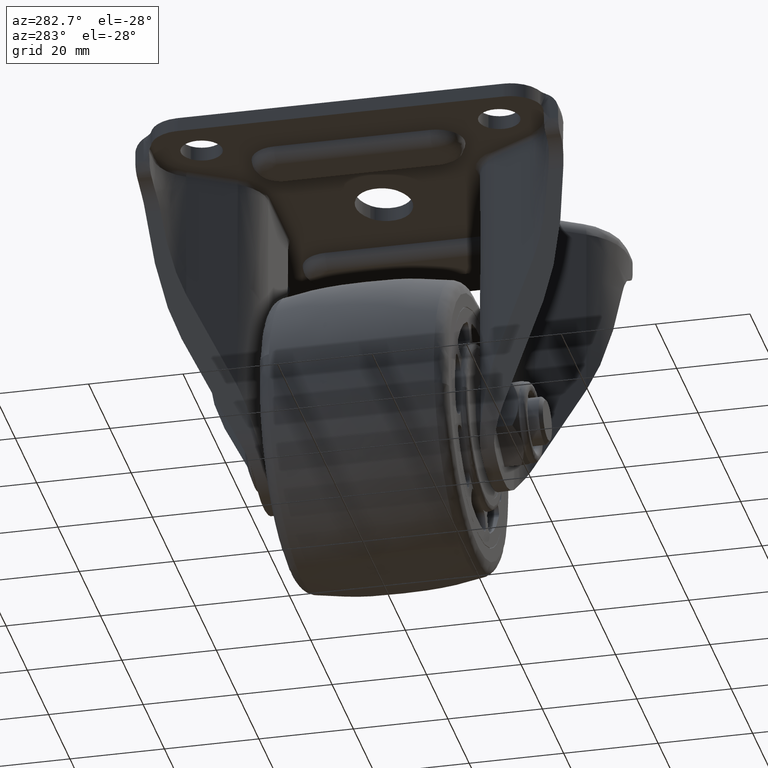
[diagram: clean part render]
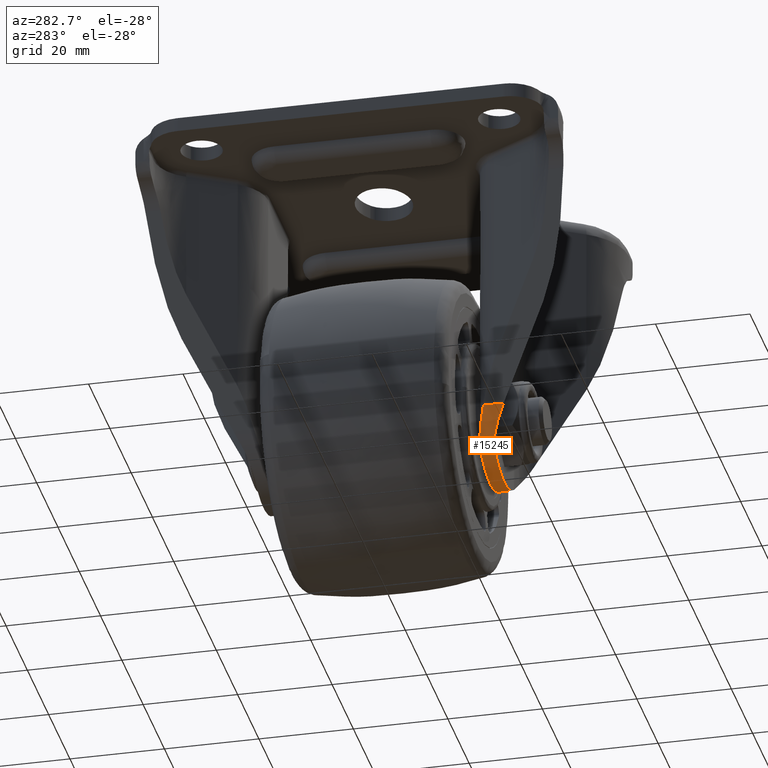
[diagram: same view with one face highlighted and labeled with its STEP entity id]
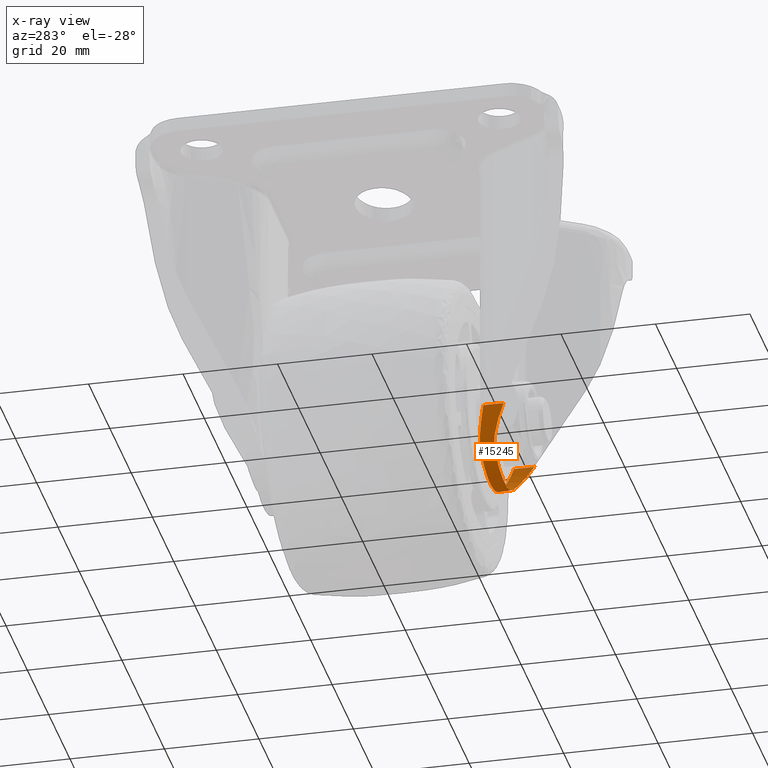
[diagram: x-ray of the same camera — body ghosted, the highlighted face saturated]
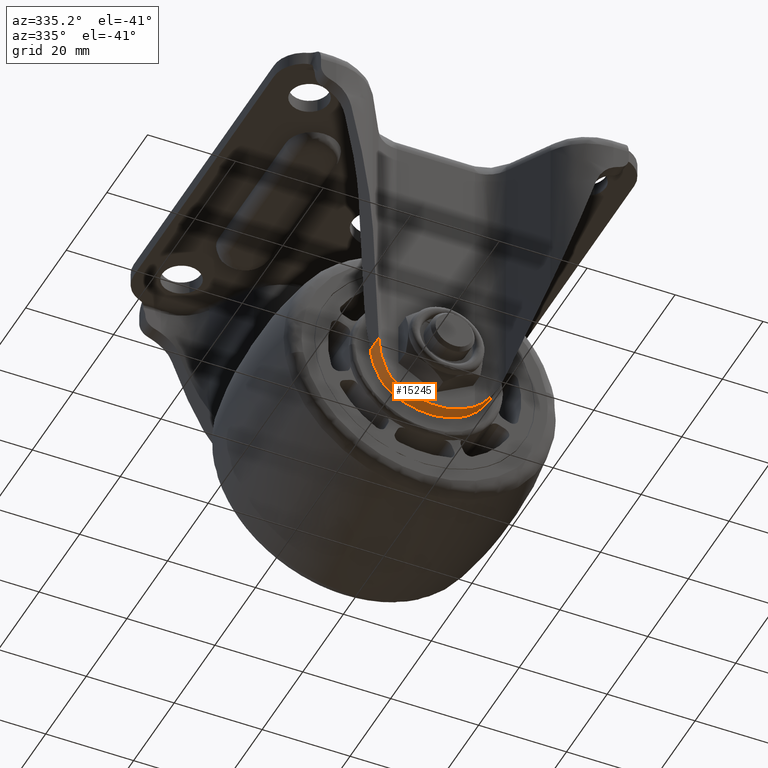
[diagram: same view with one face highlighted and labeled with its STEP entity id]
A machine part, auxiliary view. The second image highlights one B-rep face of the part: STEP entity #15245.
The next image is the same camera in x-ray: the body ghosted, the highlighted face saturated — about 0% of this face is hidden behind the body in this view.
A second angle (auxiliary view) of the same face is appended — the face is thin or edge-on in the first view.
In plain terms, the highlighted face is a freeform B-spline surface patch.
Its self-contained STEP definition (entity closure, byte-faithful):
#10280=CARTESIAN_POINT('',(8.881149699124109,-22.499996999999851,-10.588224849900380));
#10281=VERTEX_POINT('',#10280);
#10301=CARTESIAN_POINT('',(14.400001999999921,-24.267450894019149,-2.699997000000000));
#10302=VERTEX_POINT('',#10301);
#10316=CARTESIAN_POINT('',(8.881149699124109,-22.499996999999851,-10.588224849900380));
#10317=CARTESIAN_POINT('',(9.221093584384677,-22.499997029707231,-10.338470063290099));
#10318=CARTESIAN_POINT('',(9.546306329351531,-22.518134060355049,-10.077521244424821));
#10319=CARTESIAN_POINT('',(10.169592594169970,-22.582562516810569,-9.534054174112693));
#10320=CARTESIAN_POINT('',(10.467656278309891,-22.628892433356881,-9.251533196845202));
#10321=CARTESIAN_POINT('',(11.037996559307130,-22.743506571442850,-8.665132984200181));
#10322=CARTESIAN_POINT('',(11.310268712563071,-22.811814969906909,-8.361253739002253));
#10323=CARTESIAN_POINT('',(11.699801962969159,-22.926765811859799,-7.889157005373990));
#10324=CARTESIAN_POINT('',(11.826495192865110,-22.967169087614931,-7.729074083754991));
#10325=CARTESIAN_POINT('',(12.011820335443030,-23.030428496548488,-7.484800047012143));
#10326=CARTESIAN_POINT('',(12.072809279654320,-23.051957472507340,-7.402683461634322));
#10327=CARTESIAN_POINT('',(12.193213117689981,-23.095821676951370,-7.237050492551641));
#10328=CARTESIAN_POINT('',(12.252696990375821,-23.118184164848401,-7.153433538915520));
#10329=CARTESIAN_POINT('',(12.545127373603730,-23.231405392042689,-6.733315573359042));
#10330=CARTESIAN_POINT('',(12.763216703084780,-23.326462590251939,-6.390730774593934));
#10331=CARTESIAN_POINT('',(13.169569283902090,-23.520014618176070,-5.692063720815890));
#10332=CARTESIAN_POINT('',(13.357827367438510,-23.618524975205140,-5.335982980301222));
#10333=CARTESIAN_POINT('',(13.705394166498950,-23.813643592720879,-4.609368944987787));
#10334=CARTESIAN_POINT('',(13.864702794703900,-23.910263119411741,-4.238838515323840));
#10335=CARTESIAN_POINT('',(14.154337546781850,-24.096005204243060,-3.481865362439446));
#10336=CARTESIAN_POINT('',(14.284668349714600,-24.185135290331619,-3.095426838427700));
#10337=CARTESIAN_POINT('',(14.400001999999921,-24.267450894019149,-2.699997000000000));
#10338=B_SPLINE_CURVE_WITH_KNOTS('',3,(#10316,#10317,#10318,#10319,#10320,#10321,#10322,#10323,#10324,#10325,#10326,#10327,#10328,#10329,#10330,#10331,#10332,#10333,#10334,#10335,#10336,#10337),.UNSPECIFIED.,.F.,.U.,(4,2,2,2,2,2,2,2,2,2,4),(0.0,0.125000000000000,0.249999999999999,0.374999999999999,0.437499999999999,0.468749999999999,0.499999999999999,0.624999999999999,0.750000000000000,0.875000000000000,1.0),.UNSPECIFIED.);
#10339=EDGE_CURVE('',#10281,#10302,#10338,.T.);
#10939=CARTESIAN_POINT('',(-8.881149699124189,-25.499996999999851,-10.588224849900261));
#10940=VERTEX_POINT('',#10939);
#10960=CARTESIAN_POINT('',(-14.400001811212540,-28.566009323129450,-2.699993790123425));
#10961=VERTEX_POINT('',#10960);
#10967=CARTESIAN_POINT('',(-14.400001811212540,-28.566009323129450,-2.699993790123425));
#10968=CARTESIAN_POINT('',(-14.289225340388070,-28.387977536906948,-3.079799442280185));
#10969=CARTESIAN_POINT('',(-14.164649607028910,-28.207116723146640,-3.451286829396446));
#10970=CARTESIAN_POINT('',(-13.887792483201650,-27.848510506704191,-4.181703943394687));
#10971=CARTESIAN_POINT('',(-13.735507405328381,-27.670668215394489,-4.540586160238282));
#10972=CARTESIAN_POINT('',(-13.402193834325329,-27.323669766736572,-5.247891912906223));
#10973=CARTESIAN_POINT('',(-13.221170757137999,-27.154464461876319,-5.596295037456437));
#10974=CARTESIAN_POINT('',(-12.828404980817041,-26.829489858223031,-6.283879822824757));
#10975=CARTESIAN_POINT('',(-12.616676556406469,-26.673683839799029,-6.623051411572615));
#10976=CARTESIAN_POINT('',(-12.273640620149040,-26.453876865503538,-7.125477889278635));
#10977=CARTESIAN_POINT('',(-12.155043902749430,-26.382930618755559,-7.291895437762599));
#10978=CARTESIAN_POINT('',(-11.970346209406619,-26.280572254641459,-7.539991208155220));
#10979=CARTESIAN_POINT('',(-11.907551956370730,-26.247083956310419,-7.622553200806691));
#10980=CARTESIAN_POINT('',(-11.780185029754641,-26.181860420073662,-7.786442330621632));
#10981=CARTESIAN_POINT('',(-11.715609729963781,-26.150118884248350,-7.867779545992212));
#10982=CARTESIAN_POINT('',(-11.388228393882830,-25.995968470129661,-8.271444802222121));
#10983=CARTESIAN_POINT('',(-11.111951009889671,-25.887154945995711,-8.584729786911373));
#10984=CARTESIAN_POINT('',(-10.528832667817790,-25.704883553842450,-9.192095808320214));
#10985=CARTESIAN_POINT('',(-10.222010667838770,-25.631363339545810,-9.486176994483555));
#10986=CARTESIAN_POINT('',(-9.817403045679889,-25.567257121187019,-9.841525321981424));
#10987=CARTESIAN_POINT('',(-9.735423228720954,-25.555835584444221,-9.911981105005692));
#10988=CARTESIAN_POINT('',(-9.569277750526295,-25.535982813909360,-10.051653626931900));
#10989=CARTESIAN_POINT('',(-9.485039134076137,-25.527549513623679,-10.120925505158461));
#10990=CARTESIAN_POINT('',(-9.230257314108176,-25.507142502374371,-10.325813198294050));
#10991=CARTESIAN_POINT('',(-9.057285202300992,-25.499996999999851,-10.458819102533100));
#10992=CARTESIAN_POINT('',(-8.881149699124169,-25.499996999999851,-10.588224849900280));
#10993=B_SPLINE_CURVE_WITH_KNOTS('',3,(#10967,#10968,#10969,#10970,#10971,#10972,#10973,#10974,#10975,#10976,#10977,#10978,#10979,#10980,#10981,#10982,#10983,#10984,#10985,#10986,#10987,#10988,#10989,#10990,#10991,#10992),.UNSPECIFIED.,.F.,.U.,(4,2,2,2,2,2,2,2,2,2,2,2,4),(0.0,0.124999999999999,0.249999999999999,0.374999999999998,0.499999999999998,0.562499999999997,0.593749999999997,0.624999999999997,0.749999999999998,0.874999999999999,0.906249999999999,0.937499999999999,1.0),.UNSPECIFIED.);
#10994=EDGE_CURVE('',#10961,#10940,#10993,.T.);
#11035=CARTESIAN_POINT('',(8.881149699124141,-25.499996999999802,-10.588224849900300));
#11036=VERTEX_POINT('',#11035);
#11042=CARTESIAN_POINT('',(14.400001999999921,-28.566009626534751,-2.699997000000000));
#11043=VERTEX_POINT('',#11042);
#11044=CARTESIAN_POINT('',(8.881149699124141,-25.499996999999802,-10.588224849900300));
#11045=CARTESIAN_POINT('',(9.232813721907949,-25.499997064945411,-10.329859344001379));
#11046=CARTESIAN_POINT('',(9.568323028878247,-25.528266797123120,-10.059814854982751));
#11047=CARTESIAN_POINT('',(10.210080581248841,-25.629012747503349,-9.497107889268682));
#11048=CARTESIAN_POINT('',(10.516308828842741,-25.701584257187079,-9.204443567248234));
#11049=CARTESIAN_POINT('',(10.954933290222600,-25.837785114239139,-8.748605207311051));
#11050=CARTESIAN_POINT('',(11.097679653278300,-25.887768010493652,-8.593847819988419));
#11051=CARTESIAN_POINT('',(11.306693860084099,-25.969050231203429,-8.357471561719978));
#11052=CARTESIAN_POINT('',(11.375450355400179,-25.997176243885178,-8.278038920635868));
#11053=CARTESIAN_POINT('',(11.510494275093910,-26.055088275432411,-8.118702519510368));
#11054=CARTESIAN_POINT('',(11.576882147352860,-26.084912647587171,-8.038686079093797));
#11055=CARTESIAN_POINT('',(11.903337232838879,-26.238087608575348,-7.636855119187408));
#11056=CARTESIAN_POINT('',(12.147019196327250,-26.373525150930622,-7.309805952017278));
#11057=CARTESIAN_POINT('',(12.602983420776321,-26.664170652659841,-6.644173871285056));
#11058=CARTESIAN_POINT('',(12.815247670333120,-26.819416701884471,-6.305596188506537));
#11059=CARTESIAN_POINT('',(13.210524753287920,-27.144891314709739,-5.616174770443038));
#11060=CARTESIAN_POINT('',(13.393529276578890,-27.315155242579380,-5.265341327567306));
#11061=CARTESIAN_POINT('',(13.646976162152210,-27.578263921289761,-4.728898634377958));
#11062=CARTESIAN_POINT('',(13.727920269822221,-27.667243384901909,-4.548393949948057));
#11063=CARTESIAN_POINT('',(13.882086498437531,-27.846134873559251,-4.185643339401516));
#11064=CARTESIAN_POINT('',(13.955424877485090,-27.936165662119532,-4.003159533976083));
#11065=CARTESIAN_POINT('',(14.164500729382670,-28.206820810476490,-3.451911929476181));
#11066=CARTESIAN_POINT('',(14.289332923343469,-28.388150534227659,-3.079434001201737));
#11067=CARTESIAN_POINT('',(14.400001999999921,-28.566009626534751,-2.699997000000000));
#11068=B_SPLINE_CURVE_WITH_KNOTS('',3,(#11044,#11045,#11046,#11047,#11048,#11049,#11050,#11051,#11052,#11053,#11054,#11055,#11056,#11057,#11058,#11059,#11060,#11061,#11062,#11063,#11064,#11065,#11066,#11067),.UNSPECIFIED.,.F.,.U.,(4,2,2,2,2,2,2,2,2,2,2,4),(0.0,0.124999999999999,0.249999999999999,0.312499999999998,0.343749999999998,0.374999999999998,0.499999999999999,0.624999999999999,0.750000000000000,0.812500000000000,0.875000000000000,1.0),.UNSPECIFIED.);
#11069=EDGE_CURVE('',#11036,#11043,#11068,.T.);
#11440=CARTESIAN_POINT('',(-8.881149699124199,-22.499996999999851,-10.588224849900261));
#11441=VERTEX_POINT('',#11440);
#11455=CARTESIAN_POINT('',(-8.881149699124199,-22.499996999999851,-10.588224849900261));
#11456=CARTESIAN_POINT('',(-8.003607832519460,-22.499996999999841,-11.233204240560219));
#11457=CARTESIAN_POINT('',(-6.365754512921816,-22.499996999999830,-12.180886370924020));
#11458=CARTESIAN_POINT('',(-4.162801986321525,-22.499996999999919,-12.951741968923900));
#11459=CARTESIAN_POINT('',(-2.273873686656827,-22.499996999999670,-13.359980792118151));
#11460=CARTESIAN_POINT('',(-0.348126100300443,-22.499997000000420,-13.551291613181130));
#11461=CARTESIAN_POINT('',(2.131759955150131,-22.499996999999361,-13.428532215796210));
#11462=CARTESIAN_POINT('',(4.312489957043629,-22.499997000000160,-12.923171846836739));
#11463=CARTESIAN_POINT('',(6.667458579177092,-22.499996999999649,-12.006265035334740));
#11464=CARTESIAN_POINT('',(8.003607268865578,-22.499996999999968,-11.233216174068360));
#11465=CARTESIAN_POINT('',(8.881149699124109,-22.499996999999851,-10.588224849900380));
#11466=B_SPLINE_CURVE_WITH_KNOTS('',3,(#11455,#11456,#11457,#11458,#11459,#11460,#11461,#11462,#11463,#11464,#11465),.UNSPECIFIED.,.F.,.U.,(4,1,1,1,1,1,1,1,4),(0.000000054522978,3.267180752254211,5.643324096917235,6.979903055922604,9.059051894187329,11.435122852230750,14.405315932280789,15.741894478587181,19.009075791508600),.UNSPECIFIED.);
#11467=EDGE_CURVE('',#11441,#10281,#11466,.T.);
#11528=CARTESIAN_POINT('',(8.881149699124141,-25.499996999999802,-10.588224849900300));
#11529=CARTESIAN_POINT('',(8.003589229943692,-25.499996999999791,-11.233174414509371));
#11530=CARTESIAN_POINT('',(6.408873979468400,-25.499996999999880,-12.155970504466801));
#11531=CARTESIAN_POINT('',(4.210569067027181,-25.499996999999759,-12.937376983698030));
#11532=CARTESIAN_POINT('',(2.226475048980924,-25.499996999999830,-13.376509175245721));
#11533=CARTESIAN_POINT('',(0.248049147845943,-25.499997000000000,-13.553305289878560));
#11534=CARTESIAN_POINT('',(-1.683775153114072,-25.499996999999830,-13.438351803718099));
#11535=CARTESIAN_POINT('',(-3.538532250110676,-25.499996999999858,-13.113722225988170));
#11536=CARTESIAN_POINT('',(-5.963033244885367,-25.499996999999869,-12.385013399325080));
#11537=CARTESIAN_POINT('',(-7.804235430247177,-25.499996999999869,-11.379933211495960));
#11538=CARTESIAN_POINT('',(-8.881149699124189,-25.499996999999851,-10.588224849900261));
#11539=B_SPLINE_CURVE_WITH_KNOTS('',3,(#11528,#11529,#11530,#11531,#11532,#11533,#11534,#11535,#11536,#11537,#11538),.UNSPECIFIED.,.F.,.U.,(4,1,1,1,1,1,1,1,4),(0.000000054525124,3.267180752255968,5.494811719497378,6.979903055924011,9.356053752819783,11.435122852231521,12.771719235524950,14.999349811330831,19.009075791508650),.UNSPECIFIED.);
#11540=EDGE_CURVE('',#11036,#10940,#11539,.T.);
#15164=CARTESIAN_POINT('',(-14.400001811212540,-24.267450759278301,-2.699993790123425));
#15165=VERTEX_POINT('',#15164);
#15179=CARTESIAN_POINT('',(-14.400001811212540,-24.267450759278301,-2.699993790123425));
#15180=CARTESIAN_POINT('',(-14.400001811212540,-28.566009323129450,-2.699993790123425));
#15181=QUASI_UNIFORM_CURVE('',1,(#15179,#15180),.UNSPECIFIED.,.F.,.U.);
#15182=EDGE_CURVE('',#15165,#10961,#15181,.T.);
#15187=CARTESIAN_POINT('',(14.541969985432660,-22.348346684336480,-2.178465569062108));
#15188=CARTESIAN_POINT('',(14.541969985432660,-28.721451200089710,-2.178465569062108));
#15189=CARTESIAN_POINT('',(11.642101553974213,-22.348346684336473,-13.642430339221528));
#15190=CARTESIAN_POINT('',(11.642101553974213,-28.721451200089714,-13.642430339221528));
#15191=CARTESIAN_POINT('',(-0.182073798143538,-22.348346684336480,-13.498894930361679));
#15192=CARTESIAN_POINT('',(-0.182073798143538,-28.721451200089710,-13.498894930361679));
#15193=CARTESIAN_POINT('',(-12.006249150261290,-22.348346684336473,-13.355359521501843));
#15194=CARTESIAN_POINT('',(-12.006249150261290,-28.721451200089714,-13.355359521501843));
#15195=CARTESIAN_POINT('',(-14.626978553545150,-22.348346684336480,-1.824379399847437));
#15196=CARTESIAN_POINT('',(-14.626978553545150,-28.721451200089710,-1.824379399847437));
#15204=(BOUNDED_SURFACE()B_SPLINE_SURFACE(1,2,((#15187,#15189,#15191,#15193,#15195),(#15188,#15190,#15192,#15194,#15196)),.UNSPECIFIED.,.F.,.F.,.U.)B_SPLINE_SURFACE_WITH_KNOTS((2,2),(3,2,3),(0.0,6.373104515753230),(0.0,20.806186462515139,41.612372925030272),.UNSPECIFIED.)GEOMETRIC_REPRESENTATION_ITEM()RATIONAL_B_SPLINE_SURFACE(((1.0,0.785316930880745,1.0,0.785316930880745,1.0),(1.0,0.785316930880745,1.0,0.785316930880745,1.0)))REPRESENTATION_ITEM('')SURFACE());
#15205=ORIENTED_EDGE('',*,*,#11540,.T.);
#15206=ORIENTED_EDGE('',*,*,#10994,.F.);
#15207=ORIENTED_EDGE('',*,*,#15182,.F.);
#15208=CARTESIAN_POINT('',(-14.400001811212540,-24.267450759278301,-2.699993790123425));
#15209=CARTESIAN_POINT('',(-14.284969304297761,-24.185350067736081,-3.094391589428855));
#15210=CARTESIAN_POINT('',(-14.154976737292641,-24.096440226130468,-3.479983487522656));
#15211=CARTESIAN_POINT('',(-13.866030001827580,-23.911089182870700,-4.235574422646034));
#15212=CARTESIAN_POINT('',(-13.707071510730261,-23.814640705802979,-4.605569548753842));
#15213=CARTESIAN_POINT('',(-13.360162788687740,-23.619780968285500,-5.331386328901833));
#15214=CARTESIAN_POINT('',(-13.172212936282920,-23.521358578098440,-5.687205296118707));
#15215=CARTESIAN_POINT('',(-12.867837810887400,-23.376253543809529,-6.211000484666720));
#15216=CARTESIAN_POINT('',(-12.762630534630951,-23.328305843670559,-6.383939752752117));
#15217=CARTESIAN_POINT('',(-12.599038999779500,-23.257524272283501,-6.640916860474935));
#15218=CARTESIAN_POINT('',(-12.543544549043260,-23.234120534676030,-6.726170392149167));
#15219=CARTESIAN_POINT('',(-12.430595211968960,-23.187780321242020,-6.895873501350459));
#15220=CARTESIAN_POINT('',(-12.373093775485700,-23.164826856921540,-6.980387049409226));
#15221=CARTESIAN_POINT('',(-12.081770958527290,-23.051896543080819,-7.399294121541025));
#15222=CARTESIAN_POINT('',(-11.835822213904750,-22.967120122161958,-7.723839332904045));
#15223=CARTESIAN_POINT('',(-11.317824936349950,-22.813835225457179,-8.352549833851352));
#15224=CARTESIAN_POINT('',(-11.045778897788370,-22.745307383241531,-8.656713352870554));
#15225=CARTESIAN_POINT('',(-10.474541262878130,-22.630044876600209,-9.244861233327749));
#15226=CARTESIAN_POINT('',(-10.175356733598919,-22.583282987248449,-9.528846349257403));
#15227=CARTESIAN_POINT('',(-9.704789230588268,-22.534454935029789,-9.939423066865711));
#15228=CARTESIAN_POINT('',(-9.543960865431696,-22.521731229979640,-10.073969404387171));
#15229=CARTESIAN_POINT('',(-9.216751242498354,-22.504513218043108,-10.336192517380200));
#15230=CARTESIAN_POINT('',(-9.050356193084511,-22.499996999999858,-10.463909805997201));
#15231=CARTESIAN_POINT('',(-8.881149699124169,-22.499996999999851,-10.588224849900280));
#15232=B_SPLINE_CURVE_WITH_KNOTS('',3,(#15208,#15209,#15210,#15211,#15212,#15213,#15214,#15215,#15216,#15217,#15218,#15219,#15220,#15221,#15222,#15223,#15224,#15225,#15226,#15227,#15228,#15229,#15230,#15231),.UNSPECIFIED.,.F.,.U.,(4,2,2,2,2,2,2,2,2,2,2,4),(0.0,0.125000000000000,0.250000000000000,0.375000000000000,0.437500000000000,0.468749999999999,0.499999999999999,0.625000000000000,0.750000000000000,0.875000000000000,0.937500000000000,1.0),.UNSPECIFIED.);
#15233=EDGE_CURVE('',#15165,#11441,#15232,.T.);
#15234=ORIENTED_EDGE('',*,*,#15233,.T.);
#15235=ORIENTED_EDGE('',*,*,#11467,.T.);
#15236=ORIENTED_EDGE('',*,*,#10339,.T.);
#15237=CARTESIAN_POINT('',(14.400001999999921,-24.267450894019149,-2.699997000000000));
#15238=CARTESIAN_POINT('',(14.400001999999921,-28.566009626534751,-2.699997000000000));
#15239=QUASI_UNIFORM_CURVE('',1,(#15237,#15238),.UNSPECIFIED.,.F.,.U.);
#15240=EDGE_CURVE('',#10302,#11043,#15239,.T.);
#15241=ORIENTED_EDGE('',*,*,#15240,.T.);
#15242=ORIENTED_EDGE('',*,*,#11069,.F.);
#15243=EDGE_LOOP('',(#15205,#15206,#15207,#15234,#15235,#15236,#15241,#15242));
#15244=FACE_OUTER_BOUND('',#15243,.T.);
#15245=ADVANCED_FACE('',(#15244),#15204,.T.);